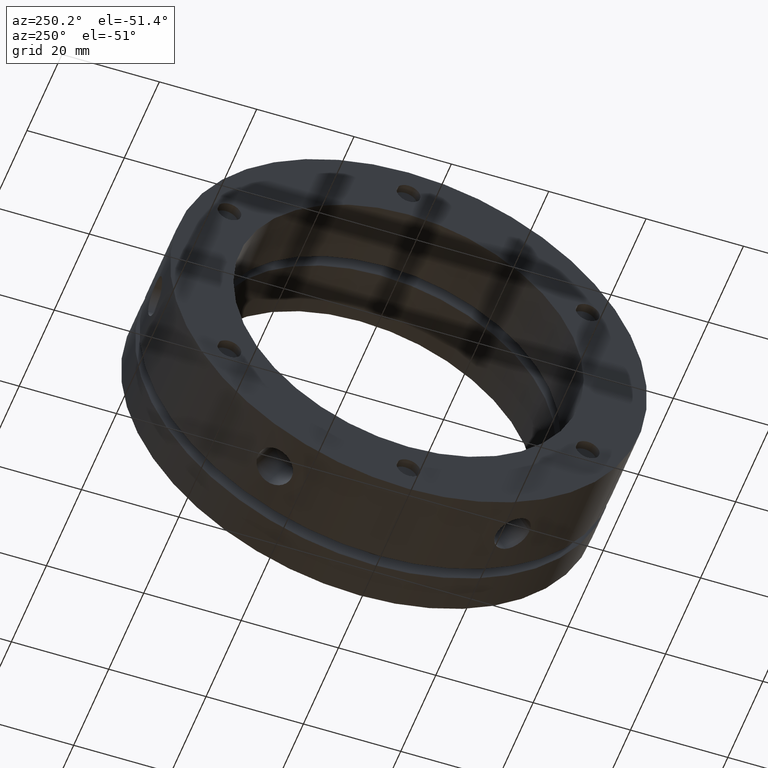
[diagram: clean part render]
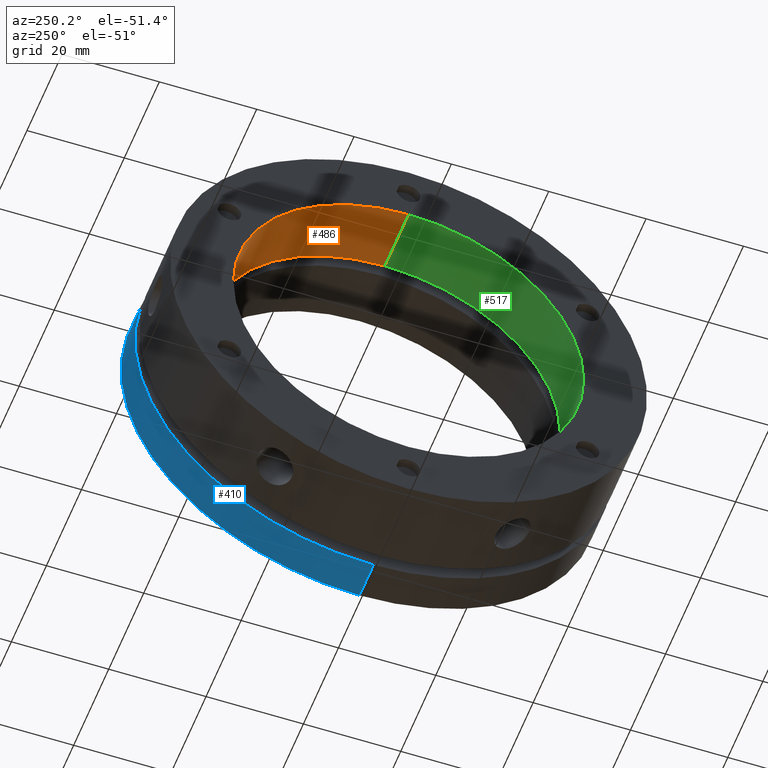
[diagram: same view with three faces highlighted in distinct colors, each labeled with its STEP entity id]
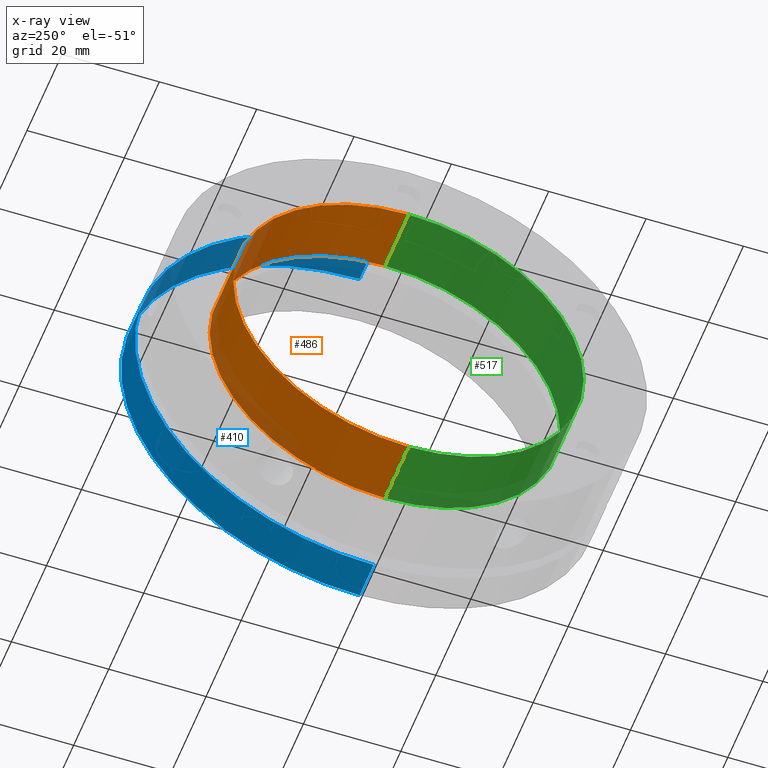
[diagram: x-ray of the same camera — body ghosted, the three highlighted faces saturated]
A machine part, auxiliary view with three faces highlighted in distinct colors.
The next image is the same camera in x-ray (body ghosted, the three faces saturated) — at least one of them is partly hidden behind the body in this view.
Their STEP definitions:

[orange] entity #486 — the highlighted cylindrical surface (partial cylindrical patch) has radius 36 mm, axis along (1, 0, 0).
#4 = VERTEX_POINT ( 'NONE', #161 ) ;
#5 = VERTEX_POINT ( 'NONE', #167 ) ;
#7 = VERTEX_POINT ( 'NONE', #169 ) ;
#128 = VERTEX_POINT ( 'NONE', #2057 ) ;
#161 = CARTESIAN_POINT ( 'NONE',  ( 13.50000000000001100, 4.408728476930471600E-015, 36.00000000000000700 ) ) ;
#167 = CARTESIAN_POINT ( 'NONE',  ( 13.50000000000001100, 0.0000000000000000000, -36.00000000000000700 ) ) ;
#169 = CARTESIAN_POINT ( 'NONE',  ( -1.040834085586084300E-014, 4.408728476930471600E-015, 36.00000000000000700 ) ) ;
#486 = ADVANCED_FACE ( 'NONE', ( #3108 ), #3117, .F. ) ;
#544 = EDGE_CURVE ( 'NONE', #4, #5, #3215, .T. ) ;
#570 = EDGE_CURVE ( 'NONE', #128, #7, #3241, .T. ) ;
#638 = EDGE_CURVE ( 'NONE', #7, #4, #3334, .T. ) ;
#640 = EDGE_CURVE ( 'NONE', #128, #5, #3337, .T. ) ;
#1327 = EDGE_LOOP ( 'NONE', ( #1605, #1606, #1607, #1608 ) ) ;
#1605 = ORIENTED_EDGE ( 'NONE', *, *, #638, .F. ) ;
#1606 = ORIENTED_EDGE ( 'NONE', *, *, #570, .F. ) ;
#1607 = ORIENTED_EDGE ( 'NONE', *, *, #640, .T. ) ;
#1608 = ORIENTED_EDGE ( 'NONE', *, *, #544, .F. ) ;
#2057 = CARTESIAN_POINT ( 'NONE',  ( -1.040834085586084300E-014, 0.0000000000000000000, -36.00000000000000700 ) ) ;
#2395 = DIRECTION ( 'NONE',  ( 0.0000000000000000000, 0.0000000000000000000, -1.000000000000000000 ) ) ;
#2397 = DIRECTION ( 'NONE',  ( 1.000000000000000000, 0.0000000000000000000, 0.0000000000000000000 ) ) ;
#2399 = CARTESIAN_POINT ( 'NONE',  ( 13.99999999999999300, 0.0000000000000000000, 0.0000000000000000000 ) ) ;
#2574 = CARTESIAN_POINT ( 'NONE',  ( 13.50000000000001100, 0.0000000000000000000, 0.0000000000000000000 ) ) ;
#2575 = DIRECTION ( 'NONE',  ( -1.000000000000000000, -0.0000000000000000000, -0.0000000000000000000 ) ) ;
#2576 = DIRECTION ( 'NONE',  ( 0.0000000000000000000, 0.0000000000000000000, -1.000000000000000000 ) ) ;
#2654 = CARTESIAN_POINT ( 'NONE',  ( -1.040834085586084300E-014, 0.0000000000000000000, 0.0000000000000000000 ) ) ;
#2655 = DIRECTION ( 'NONE',  ( 1.000000000000000000, 0.0000000000000000000, 0.0000000000000000000 ) ) ;
#2656 = DIRECTION ( 'NONE',  ( 0.0000000000000000000, 0.0000000000000000000, -1.000000000000000000 ) ) ;
#3108 = FACE_OUTER_BOUND ( 'NONE', #1327, .T. ) ;
#3117 = CYLINDRICAL_SURFACE ( 'NONE', #4613, 36.00000000000000700 ) ;
#3215 = CIRCLE ( 'NONE', #4667, 36.00000000000000700 ) ;
#3241 = CIRCLE ( 'NONE', #4693, 36.00000000000000700 ) ;
#3334 = LINE ( 'NONE', #3892, #3336 ) ;
#3336 = VECTOR ( 'NONE', #3890, 1000.000000000000000 ) ;
#3337 = LINE ( 'NONE', #3897, #3339 ) ;
#3339 = VECTOR ( 'NONE', #3893, 1000.000000000000000 ) ;
#3890 = DIRECTION ( 'NONE',  ( 1.000000000000000000, 0.0000000000000000000, 0.0000000000000000000 ) ) ;
#3892 = CARTESIAN_POINT ( 'NONE',  ( 13.99999999999999300, 4.408728476930471600E-015, 36.00000000000000700 ) ) ;
#3893 = DIRECTION ( 'NONE',  ( 1.000000000000000000, 0.0000000000000000000, 0.0000000000000000000 ) ) ;
#3897 = CARTESIAN_POINT ( 'NONE',  ( 13.99999999999999300, 0.0000000000000000000, -36.00000000000000700 ) ) ;
#4613 = AXIS2_PLACEMENT_3D ( 'NONE', #2399, #2397, #2395 ) ;
#4667 = AXIS2_PLACEMENT_3D ( 'NONE', #2574, #2575, #2576 ) ;
#4693 = AXIS2_PLACEMENT_3D ( 'NONE', #2654, #2655, #2656 ) ;

[blue] entity #410 — the highlighted cylindrical surface (partial cylindrical patch) has radius 49 mm, axis along (1, 0, 0).
#16 = EDGE_CURVE ( 'NONE', #841, #844, #1699, .T. ) ;
#17 = EDGE_CURVE ( 'NONE', #844, #847, #1700, .T. ) ;
#18 = EDGE_CURVE ( 'NONE', #847, #848, #1706, .T. ) ;
#19 = EDGE_CURVE ( 'NONE', #841, #848, #1703, .T. ) ;
#179 = DIRECTION ( 'NONE',  ( 1.000000000000000000, 0.0000000000000000000, 0.0000000000000000000 ) ) ;
#180 = CARTESIAN_POINT ( 'NONE',  ( 13.99999999999998800, 0.0000000000000000000, -49.00000000000000000 ) ) ;
#181 = DIRECTION ( 'NONE',  ( 1.000000000000000000, 0.0000000000000000000, 0.0000000000000000000 ) ) ;
#182 = CARTESIAN_POINT ( 'NONE',  ( 13.99999999999998800, 6.000769315822030900E-015, 49.00000000000000000 ) ) ;
#183 = CARTESIAN_POINT ( 'NONE',  ( 19.99999999999999300, 0.0000000000000000000, 0.0000000000000000000 ) ) ;
#184 = DIRECTION ( 'NONE',  ( 1.000000000000000000, 0.0000000000000000000, 0.0000000000000000000 ) ) ;
#185 = DIRECTION ( 'NONE',  ( 0.0000000000000000000, 0.0000000000000000000, -1.000000000000000000 ) ) ;
#186 = CARTESIAN_POINT ( 'NONE',  ( 27.99999999999998900, 0.0000000000000000000, 0.0000000000000000000 ) ) ;
#187 = DIRECTION ( 'NONE',  ( -1.000000000000000000, -0.0000000000000000000, -0.0000000000000000000 ) ) ;
#188 = DIRECTION ( 'NONE',  ( 0.0000000000000000000, 0.0000000000000000000, -1.000000000000000000 ) ) ;
#410 = ADVANCED_FACE ( 'NONE', ( #1878 ), #1887, .T. ) ;
#732 = AXIS2_PLACEMENT_3D ( 'NONE', #183, #184, #185 ) ;
#733 = AXIS2_PLACEMENT_3D ( 'NONE', #186, #187, #188 ) ;
#841 = VERTEX_POINT ( 'NONE', #4177 ) ;
#844 = VERTEX_POINT ( 'NONE', #4180 ) ;
#847 = VERTEX_POINT ( 'NONE', #4183 ) ;
#848 = VERTEX_POINT ( 'NONE', #4184 ) ;
#1078 = ORIENTED_EDGE ( 'NONE', *, *, #16, .T. ) ;
#1079 = ORIENTED_EDGE ( 'NONE', *, *, #17, .T. ) ;
#1080 = ORIENTED_EDGE ( 'NONE', *, *, #18, .T. ) ;
#1081 = ORIENTED_EDGE ( 'NONE', *, *, #19, .F. ) ;
#1211 = EDGE_LOOP ( 'NONE', ( #1078, #1079, #1080, #1081 ) ) ;
#1699 = CIRCLE ( 'NONE', #732, 49.00000000000000000 ) ;
#1700 = LINE ( 'NONE', #182, #1705 ) ;
#1703 = LINE ( 'NONE', #180, #1709 ) ;
#1705 = VECTOR ( 'NONE', #179, 1000.000000000000000 ) ;
#1706 = CIRCLE ( 'NONE', #733, 49.00000000000000000 ) ;
#1709 = VECTOR ( 'NONE', #181, 1000.000000000000000 ) ;
#1878 = FACE_OUTER_BOUND ( 'NONE', #1211, .T. ) ;
#1887 = CYLINDRICAL_SURFACE ( 'NONE', #4539, 49.00000000000000000 ) ;
#2157 = DIRECTION ( 'NONE',  ( 0.0000000000000000000, 0.0000000000000000000, -1.000000000000000000 ) ) ;
#2159 = DIRECTION ( 'NONE',  ( 1.000000000000000000, 0.0000000000000000000, 0.0000000000000000000 ) ) ;
#2161 = CARTESIAN_POINT ( 'NONE',  ( 13.99999999999998800, 0.0000000000000000000, 0.0000000000000000000 ) ) ;
#4177 = CARTESIAN_POINT ( 'NONE',  ( 19.99999999999999300, 0.0000000000000000000, -49.00000000000000000 ) ) ;
#4180 = CARTESIAN_POINT ( 'NONE',  ( 19.99999999999999300, 6.000769315822030900E-015, 49.00000000000000000 ) ) ;
#4183 = CARTESIAN_POINT ( 'NONE',  ( 27.99999999999998900, 6.000769315822030900E-015, 49.00000000000000000 ) ) ;
#4184 = CARTESIAN_POINT ( 'NONE',  ( 27.99999999999998900, 0.0000000000000000000, -49.00000000000000000 ) ) ;
#4539 = AXIS2_PLACEMENT_3D ( 'NONE', #2161, #2159, #2157 ) ;

[green] entity #517 — the highlighted cylindrical surface (partial cylindrical patch) has radius 36 mm, axis along (1, 0, 0).
#4 = VERTEX_POINT ( 'NONE', #161 ) ;
#5 = VERTEX_POINT ( 'NONE', #167 ) ;
#7 = VERTEX_POINT ( 'NONE', #169 ) ;
#128 = VERTEX_POINT ( 'NONE', #2057 ) ;
#161 = CARTESIAN_POINT ( 'NONE',  ( 13.50000000000001100, 4.408728476930471600E-015, 36.00000000000000700 ) ) ;
#167 = CARTESIAN_POINT ( 'NONE',  ( 13.50000000000001100, 0.0000000000000000000, -36.00000000000000700 ) ) ;
#169 = CARTESIAN_POINT ( 'NONE',  ( -1.040834085586084300E-014, 4.408728476930471600E-015, 36.00000000000000700 ) ) ;
#517 = ADVANCED_FACE ( 'NONE', ( #3180 ), #3189, .F. ) ;
#637 = EDGE_CURVE ( 'NONE', #7, #128, #3330, .T. ) ;
#638 = EDGE_CURVE ( 'NONE', #7, #4, #3334, .T. ) ;
#639 = EDGE_CURVE ( 'NONE', #5, #4, #3332, .T. ) ;
#640 = EDGE_CURVE ( 'NONE', #128, #5, #3337, .T. ) ;
#976 = ORIENTED_EDGE ( 'NONE', *, *, #637, .F. ) ;
#977 = ORIENTED_EDGE ( 'NONE', *, *, #638, .T. ) ;
#978 = ORIENTED_EDGE ( 'NONE', *, *, #639, .F. ) ;
#979 = ORIENTED_EDGE ( 'NONE', *, *, #640, .F. ) ;
#1178 = EDGE_LOOP ( 'NONE', ( #976, #977, #978, #979 ) ) ;
#2057 = CARTESIAN_POINT ( 'NONE',  ( -1.040834085586084300E-014, 0.0000000000000000000, -36.00000000000000700 ) ) ;
#2500 = DIRECTION ( 'NONE',  ( 0.0000000000000000000, 0.0000000000000000000, -1.000000000000000000 ) ) ;
#2502 = DIRECTION ( 'NONE',  ( 1.000000000000000000, 0.0000000000000000000, 0.0000000000000000000 ) ) ;
#2504 = CARTESIAN_POINT ( 'NONE',  ( 13.99999999999999300, 0.0000000000000000000, 0.0000000000000000000 ) ) ;
#3180 = FACE_OUTER_BOUND ( 'NONE', #1178, .T. ) ;
#3189 = CYLINDRICAL_SURFACE ( 'NONE', #4646, 36.00000000000000700 ) ;
#3330 = CIRCLE ( 'NONE', #4712, 36.00000000000000700 ) ;
#3332 = CIRCLE ( 'NONE', #4713, 36.00000000000000700 ) ;
#3334 = LINE ( 'NONE', #3892, #3336 ) ;
#3336 = VECTOR ( 'NONE', #3890, 1000.000000000000000 ) ;
#3337 = LINE ( 'NONE', #3897, #3339 ) ;
#3339 = VECTOR ( 'NONE', #3893, 1000.000000000000000 ) ;
#3890 = DIRECTION ( 'NONE',  ( 1.000000000000000000, 0.0000000000000000000, 0.0000000000000000000 ) ) ;
#3892 = CARTESIAN_POINT ( 'NONE',  ( 13.99999999999999300, 4.408728476930471600E-015, 36.00000000000000700 ) ) ;
#3893 = DIRECTION ( 'NONE',  ( 1.000000000000000000, 0.0000000000000000000, 0.0000000000000000000 ) ) ;
#3894 = CARTESIAN_POINT ( 'NONE',  ( -1.040834085586084300E-014, 0.0000000000000000000, 0.0000000000000000000 ) ) ;
#3895 = DIRECTION ( 'NONE',  ( 1.000000000000000000, 0.0000000000000000000, 0.0000000000000000000 ) ) ;
#3896 = DIRECTION ( 'NONE',  ( 0.0000000000000000000, 0.0000000000000000000, -1.000000000000000000 ) ) ;
#3897 = CARTESIAN_POINT ( 'NONE',  ( 13.99999999999999300, 0.0000000000000000000, -36.00000000000000700 ) ) ;
#3899 = CARTESIAN_POINT ( 'NONE',  ( 13.50000000000001100, 0.0000000000000000000, 0.0000000000000000000 ) ) ;
#3900 = DIRECTION ( 'NONE',  ( -1.000000000000000000, -0.0000000000000000000, -0.0000000000000000000 ) ) ;
#3901 = DIRECTION ( 'NONE',  ( 0.0000000000000000000, 0.0000000000000000000, -1.000000000000000000 ) ) ;
#4646 = AXIS2_PLACEMENT_3D ( 'NONE', #2504, #2502, #2500 ) ;
#4712 = AXIS2_PLACEMENT_3D ( 'NONE', #3894, #3895, #3896 ) ;
#4713 = AXIS2_PLACEMENT_3D ( 'NONE', #3899, #3900, #3901 ) ;